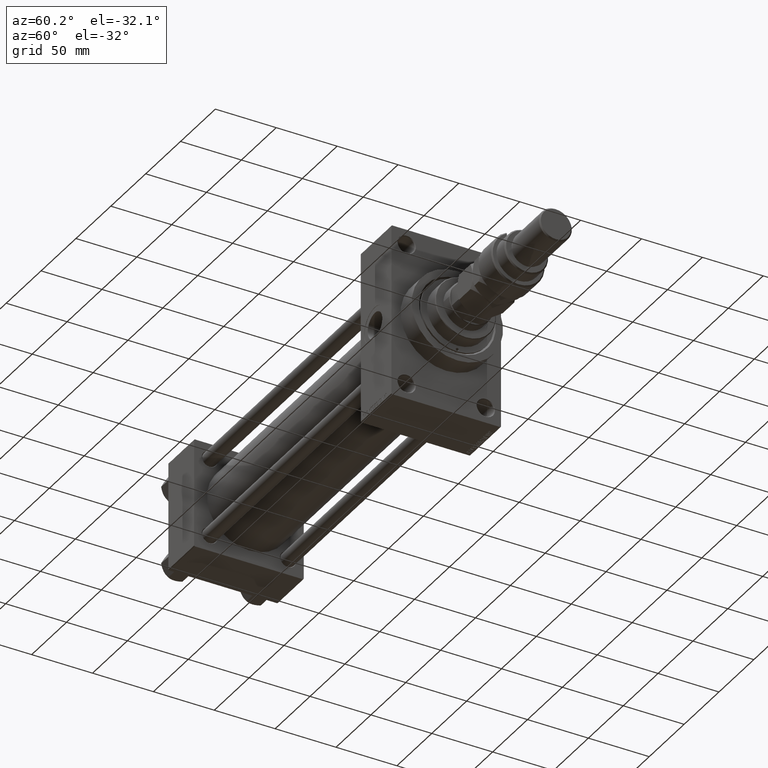
[diagram: clean part render]
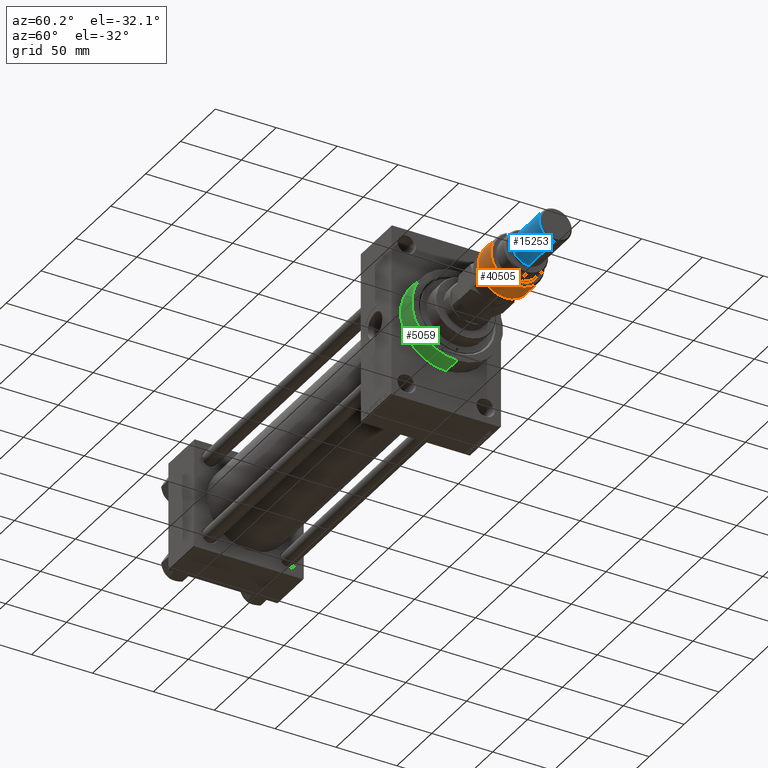
[diagram: same view with three faces highlighted in distinct colors, each labeled with its STEP entity id]
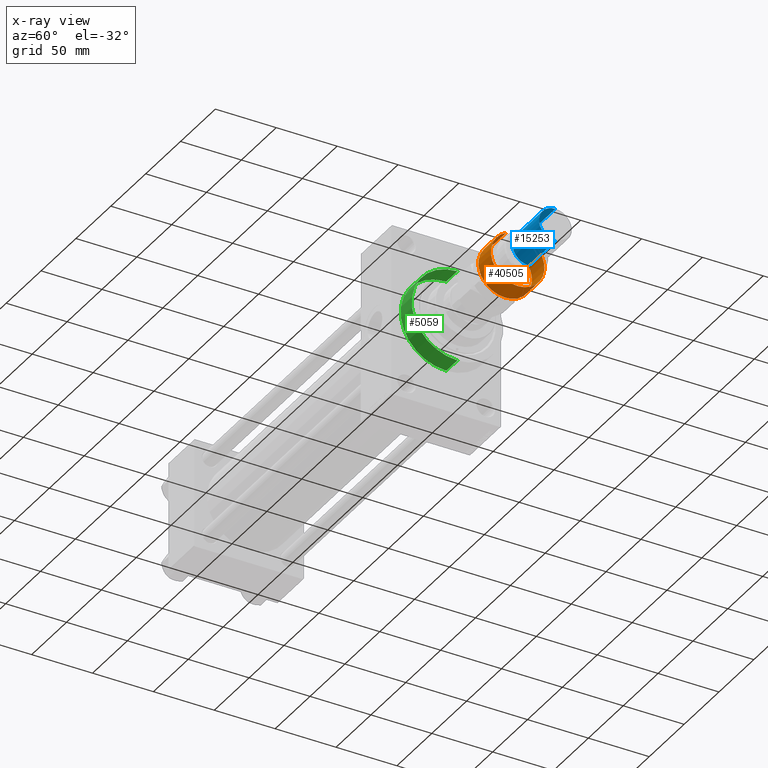
[diagram: x-ray of the same camera — body ghosted, the three highlighted faces saturated]
A machine part, auxiliary view with three faces highlighted in distinct colors.
The next image is the same camera in x-ray (body ghosted, the three faces saturated) — at least one of them is partly hidden behind the body in this view.
Their STEP definitions:

[orange] entity #40505 — the highlighted cylindrical surface (edge-blend (fillet) strip) has radius 22 mm, axis along (-1, -0, 0).
#60 = CYLINDRICAL_SURFACE ( 'NONE', #31098, 22.00000000000000000 ) ;
#147 = CARTESIAN_POINT ( 'NONE',  ( 0.000000000000000000, 0.000000000000000000, 1.000000000000000888 ) ) ;
#256 = DIRECTION ( 'NONE',  ( 0.000000000000000000, 0.000000000000000000, -1.000000000000000000 ) ) ;
#485 = ORIENTED_EDGE ( 'NONE', *, *, #47385, .F. ) ;
#1055 = CIRCLE ( 'NONE', #31111, 22.00000000000000000 ) ;
#1892 = DIRECTION ( 'NONE',  ( -0.000000000000000000, -0.000000000000000000, -1.000000000000000000 ) ) ;
#2748 = VERTEX_POINT ( 'NONE', #27422 ) ;
#3994 = EDGE_CURVE ( 'NONE', #42436, #28913, #47888, .T. ) ;
#4616 = DIRECTION ( 'NONE',  ( -0.000000000000000000, -0.000000000000000000, -1.000000000000000000 ) ) ;
#4905 = DIRECTION ( 'NONE',  ( -0.000000000000000000, -0.000000000000000000, -1.000000000000000000 ) ) ;
#6686 = CARTESIAN_POINT ( 'NONE',  ( -19.84313483298442193, -9.500000000000005329, 18.99999999999998579 ) ) ;
#7923 = FACE_OUTER_BOUND ( 'NONE', #41953, .T. ) ;
#8035 = CIRCLE ( 'NONE', #15335, 22.00000000000000000 ) ;
#8456 = DIRECTION ( 'NONE',  ( 1.000000000000000000, 0.000000000000000000, 0.000000000000000000 ) ) ;
#9481 = AXIS2_PLACEMENT_3D ( 'NONE', #14747, #256, #11193 ) ;
#9626 = VECTOR ( 'NONE', #4905, 1000.000000000000000 ) ;
#10062 = EDGE_CURVE ( 'NONE', #2748, #28202, #1055, .T. ) ;
#11193 = DIRECTION ( 'NONE',  ( 1.000000000000000000, 0.000000000000000000, 0.000000000000000000 ) ) ;
#13010 = CARTESIAN_POINT ( 'NONE',  ( -19.84313483298442193, -9.500000000000005329, 1.000000000000000888 ) ) ;
#14747 = CARTESIAN_POINT ( 'NONE',  ( 0.000000000000000000, 0.000000000000000000, 18.99999999999998579 ) ) ;
#15335 = AXIS2_PLACEMENT_3D ( 'NONE', #147, #36474, #17122 ) ;
#15552 = DIRECTION ( 'NONE',  ( -1.000000000000000000, 0.000000000000000000, 0.000000000000000000 ) ) ;
#17122 = DIRECTION ( 'NONE',  ( 1.000000000000000000, 0.000000000000000000, 0.000000000000000000 ) ) ;
#20151 = DIRECTION ( 'NONE',  ( -0.000000000000000000, -0.000000000000000000, 1.000000000000000000 ) ) ;
#22018 = EDGE_CURVE ( 'NONE', #24069, #42436, #49294, .T. ) ;
#24069 = VERTEX_POINT ( 'NONE', #48119 ) ;
#26453 = EDGE_CURVE ( 'NONE', #28913, #2748, #8035, .T. ) ;
#27422 = CARTESIAN_POINT ( 'NONE',  ( 22.00000000000000000, 0.000000000000000000, 1.000000000000000888 ) ) ;
#27522 = CARTESIAN_POINT ( 'NONE',  ( 0.000000000000000000, 0.000000000000000000, 20.00000000000000000 ) ) ;
#28202 = VERTEX_POINT ( 'NONE', #40976 ) ;
#28913 = VERTEX_POINT ( 'NONE', #13010 ) ;
#31098 = AXIS2_PLACEMENT_3D ( 'NONE', #27522, #4616, #15552 ) ;
#31111 = AXIS2_PLACEMENT_3D ( 'NONE', #42561, #20151, #8456 ) ;
#32433 = CARTESIAN_POINT ( 'NONE',  ( -19.84313483298442904, 9.500000000000000000, 23.00000000000000000 ) ) ;
#34485 = ORIENTED_EDGE ( 'NONE', *, *, #3994, .T. ) ;
#36474 = DIRECTION ( 'NONE',  ( -0.000000000000000000, -0.000000000000000000, 1.000000000000000000 ) ) ;
#36735 = LINE ( 'NONE', #32433, #43521 ) ;
#40505 = ADVANCED_FACE ( 'NONE', ( #7923 ), #60, .T. ) ;
#40976 = CARTESIAN_POINT ( 'NONE',  ( -19.84313483298442904, 9.500000000000000000, 1.000000000000000888 ) ) ;
#41953 = EDGE_LOOP ( 'NONE', ( #485, #46586, #34485, #45643, #49218 ) ) ;
#42436 = VERTEX_POINT ( 'NONE', #6686 ) ;
#42561 = CARTESIAN_POINT ( 'NONE',  ( 0.000000000000000000, 0.000000000000000000, 1.000000000000000888 ) ) ;
#43521 = VECTOR ( 'NONE', #1892, 1000.000000000000000 ) ;
#43823 = CARTESIAN_POINT ( 'NONE',  ( -19.84313483298442193, -9.500000000000005329, 23.00000000000000000 ) ) ;
#45643 = ORIENTED_EDGE ( 'NONE', *, *, #26453, .T. ) ;
#46586 = ORIENTED_EDGE ( 'NONE', *, *, #22018, .T. ) ;
#47385 = EDGE_CURVE ( 'NONE', #24069, #28202, #36735, .T. ) ;
#47888 = LINE ( 'NONE', #43823, #9626 ) ;
#48119 = CARTESIAN_POINT ( 'NONE',  ( -19.84313483298442904, 9.500000000000000000, 18.99999999999998579 ) ) ;
#49218 = ORIENTED_EDGE ( 'NONE', *, *, #10062, .T. ) ;
#49294 = CIRCLE ( 'NONE', #9481, 22.00000000000000000 ) ;

[blue] entity #15253 — the highlighted cylindrical surface (edge-blend (fillet) strip) has radius 13.5 mm, axis along (-1, -0, 0).
#458 = CIRCLE ( 'NONE', #49991, 13.50000000000000000 ) ;
#2394 = ORIENTED_EDGE ( 'NONE', *, *, #16057, .T. ) ;
#4912 = VECTOR ( 'NONE', #41072, 1000.000000000000000 ) ;
#6194 = DIRECTION ( 'NONE',  ( 0.000000000000000000, 0.000000000000000000, -1.000000000000000000 ) ) ;
#6727 = LINE ( 'NONE', #21990, #4912 ) ;
#9758 = DIRECTION ( 'NONE',  ( -1.000000000000000000, 0.000000000000000000, 0.000000000000000000 ) ) ;
#11371 = ORIENTED_EDGE ( 'NONE', *, *, #35406, .T. ) ;
#12159 = VERTEX_POINT ( 'NONE', #43775 ) ;
#12287 = ORIENTED_EDGE ( 'NONE', *, *, #33342, .F. ) ;
#15210 = DIRECTION ( 'NONE',  ( -0.000000000000000000, -0.000000000000000000, 1.000000000000000000 ) ) ;
#15253 = ADVANCED_FACE ( 'NONE', ( #24537 ), #29350, .T. ) ;
#16057 = EDGE_CURVE ( 'NONE', #37189, #25569, #37827, .T. ) ;
#17293 = CARTESIAN_POINT ( 'NONE',  ( -13.50000000000000000, 0.000000000000000000, 74.00000000000001421 ) ) ;
#17377 = CARTESIAN_POINT ( 'NONE',  ( 0.000000000000000000, 0.000000000000000000, 74.00000000000001421 ) ) ;
#21990 = CARTESIAN_POINT ( 'NONE',  ( 13.50000000000000000, 1.653273178848926867E-15, 74.00000000000001421 ) ) ;
#22508 = CARTESIAN_POINT ( 'NONE',  ( -13.50000000000000000, 0.000000000000000000, 73.00000000000001421 ) ) ;
#23041 = CARTESIAN_POINT ( 'NONE',  ( -13.50000000000000000, 0.000000000000000000, 34.99999999999999289 ) ) ;
#23702 = VECTOR ( 'NONE', #41218, 1000.000000000000000 ) ;
#24537 = FACE_OUTER_BOUND ( 'NONE', #50134, .T. ) ;
#25533 = DIRECTION ( 'NONE',  ( -0.000000000000000000, -0.000000000000000000, -1.000000000000000000 ) ) ;
#25569 = VERTEX_POINT ( 'NONE', #35220 ) ;
#28764 = LINE ( 'NONE', #17293, #23702 ) ;
#29350 = CYLINDRICAL_SURFACE ( 'NONE', #36983, 13.50000000000000000 ) ;
#29354 = CARTESIAN_POINT ( 'NONE',  ( 0.000000000000000000, 0.000000000000000000, 73.00000000000001421 ) ) ;
#32589 = ORIENTED_EDGE ( 'NONE', *, *, #46563, .T. ) ;
#33342 = EDGE_CURVE ( 'NONE', #12159, #25569, #6727, .T. ) ;
#35220 = CARTESIAN_POINT ( 'NONE',  ( 13.50000000000000000, 1.653273178848926867E-15, 34.99999999999999289 ) ) ;
#35406 = EDGE_CURVE ( 'NONE', #39929, #37189, #28764, .T. ) ;
#36983 = AXIS2_PLACEMENT_3D ( 'NONE', #17377, #25533, #9758 ) ;
#37189 = VERTEX_POINT ( 'NONE', #23041 ) ;
#37231 = DIRECTION ( 'NONE',  ( 1.000000000000000000, 0.000000000000000000, 0.000000000000000000 ) ) ;
#37827 = CIRCLE ( 'NONE', #50041, 13.50000000000000000 ) ;
#39929 = VERTEX_POINT ( 'NONE', #22508 ) ;
#41072 = DIRECTION ( 'NONE',  ( -0.000000000000000000, -0.000000000000000000, -1.000000000000000000 ) ) ;
#41218 = DIRECTION ( 'NONE',  ( -0.000000000000000000, -0.000000000000000000, -1.000000000000000000 ) ) ;
#42188 = DIRECTION ( 'NONE',  ( 1.000000000000000000, 0.000000000000000000, 0.000000000000000000 ) ) ;
#43775 = CARTESIAN_POINT ( 'NONE',  ( 13.50000000000000000, 1.653273178848926867E-15, 73.00000000000001421 ) ) ;
#46563 = EDGE_CURVE ( 'NONE', #12159, #39929, #458, .T. ) ;
#49991 = AXIS2_PLACEMENT_3D ( 'NONE', #29354, #6194, #37231 ) ;
#50041 = AXIS2_PLACEMENT_3D ( 'NONE', #50074, #15210, #42188 ) ;
#50074 = CARTESIAN_POINT ( 'NONE',  ( 0.000000000000000000, 0.000000000000000000, 34.99999999999999289 ) ) ;
#50134 = EDGE_LOOP ( 'NONE', ( #12287, #32589, #11371, #2394 ) ) ;

[green] entity #5059 — the highlighted cylindrical surface (partial cylindrical patch) has radius 37.5 mm, axis along (-1, -0, -0).
#1349 = ORIENTED_EDGE ( 'NONE', *, *, #17480, .T. ) ;
#2136 = LINE ( 'NONE', #17626, #29692 ) ;
#3972 = ORIENTED_EDGE ( 'NONE', *, *, #6867, .F. ) ;
#4635 = CARTESIAN_POINT ( 'NONE',  ( 319.9999999999999432, 0.000000000000000000, 37.50000000000000711 ) ) ;
#5059 = ADVANCED_FACE ( 'NONE', ( #21603 ), #37130, .T. ) ;
#6324 = VERTEX_POINT ( 'NONE', #4635 ) ;
#6867 = EDGE_CURVE ( 'NONE', #47322, #11488, #47492, .T. ) ;
#8615 = DIRECTION ( 'NONE',  ( 1.000000000000000000, 0.000000000000000000, 0.000000000000000000 ) ) ;
#9789 = CARTESIAN_POINT ( 'NONE',  ( 335.9999999999999432, 0.000000000000000000, 37.50000000000000711 ) ) ;
#10162 = CARTESIAN_POINT ( 'NONE',  ( 335.9999999999999432, 0.000000000000000000, 0.000000000000000000 ) ) ;
#10477 = EDGE_LOOP ( 'NONE', ( #3972, #16924, #34390, #1349 ) ) ;
#11488 = VERTEX_POINT ( 'NONE', #15486 ) ;
#12142 = CARTESIAN_POINT ( 'NONE',  ( 335.9999999999999432, 4.592425496802575156E-15, -37.50000000000000711 ) ) ;
#15317 = EDGE_CURVE ( 'NONE', #20106, #6324, #2136, .T. ) ;
#15486 = CARTESIAN_POINT ( 'NONE',  ( 319.9999999999999432, 4.592425496802575156E-15, -37.50000000000000711 ) ) ;
#16924 = ORIENTED_EDGE ( 'NONE', *, *, #17926, .F. ) ;
#17480 = EDGE_CURVE ( 'NONE', #6324, #11488, #32999, .T. ) ;
#17626 = CARTESIAN_POINT ( 'NONE',  ( 335.9999999999999432, 0.000000000000000000, 37.50000000000000711 ) ) ;
#17926 = EDGE_CURVE ( 'NONE', #20106, #47322, #49298, .T. ) ;
#20106 = VERTEX_POINT ( 'NONE', #9789 ) ;
#20247 = CARTESIAN_POINT ( 'NONE',  ( 335.9999999999999432, 0.000000000000000000, 0.000000000000000000 ) ) ;
#20512 = DIRECTION ( 'NONE',  ( -1.000000000000000000, -0.000000000000000000, -0.000000000000000000 ) ) ;
#20702 = DIRECTION ( 'NONE',  ( -1.000000000000000000, -0.000000000000000000, -0.000000000000000000 ) ) ;
#21603 = FACE_OUTER_BOUND ( 'NONE', #10477, .T. ) ;
#25049 = CARTESIAN_POINT ( 'NONE',  ( 335.9999999999999432, 4.592425496802575156E-15, -37.50000000000000711 ) ) ;
#25187 = VECTOR ( 'NONE', #20512, 1000.000000000000000 ) ;
#27464 = CARTESIAN_POINT ( 'NONE',  ( 319.9999999999999432, 0.000000000000000000, 0.000000000000000000 ) ) ;
#27713 = DIRECTION ( 'NONE',  ( 0.000000000000000000, 0.000000000000000000, -1.000000000000000000 ) ) ;
#28166 = AXIS2_PLACEMENT_3D ( 'NONE', #20247, #36518, #44404 ) ;
#29692 = VECTOR ( 'NONE', #20702, 1000.000000000000000 ) ;
#32999 = CIRCLE ( 'NONE', #42768, 37.50000000000000711 ) ;
#34390 = ORIENTED_EDGE ( 'NONE', *, *, #15317, .T. ) ;
#36518 = DIRECTION ( 'NONE',  ( 1.000000000000000000, 0.000000000000000000, 0.000000000000000000 ) ) ;
#37130 = CYLINDRICAL_SURFACE ( 'NONE', #38907, 37.50000000000000711 ) ;
#37633 = DIRECTION ( 'NONE',  ( -1.000000000000000000, -0.000000000000000000, -0.000000000000000000 ) ) ;
#38907 = AXIS2_PLACEMENT_3D ( 'NONE', #10162, #37633, #45016 ) ;
#42768 = AXIS2_PLACEMENT_3D ( 'NONE', #27464, #8615, #27713 ) ;
#44404 = DIRECTION ( 'NONE',  ( 0.000000000000000000, 0.000000000000000000, -1.000000000000000000 ) ) ;
#45016 = DIRECTION ( 'NONE',  ( 0.000000000000000000, 0.000000000000000000, 1.000000000000000000 ) ) ;
#47322 = VERTEX_POINT ( 'NONE', #25049 ) ;
#47492 = LINE ( 'NONE', #12142, #25187 ) ;
#49298 = CIRCLE ( 'NONE', #28166, 37.50000000000000711 ) ;